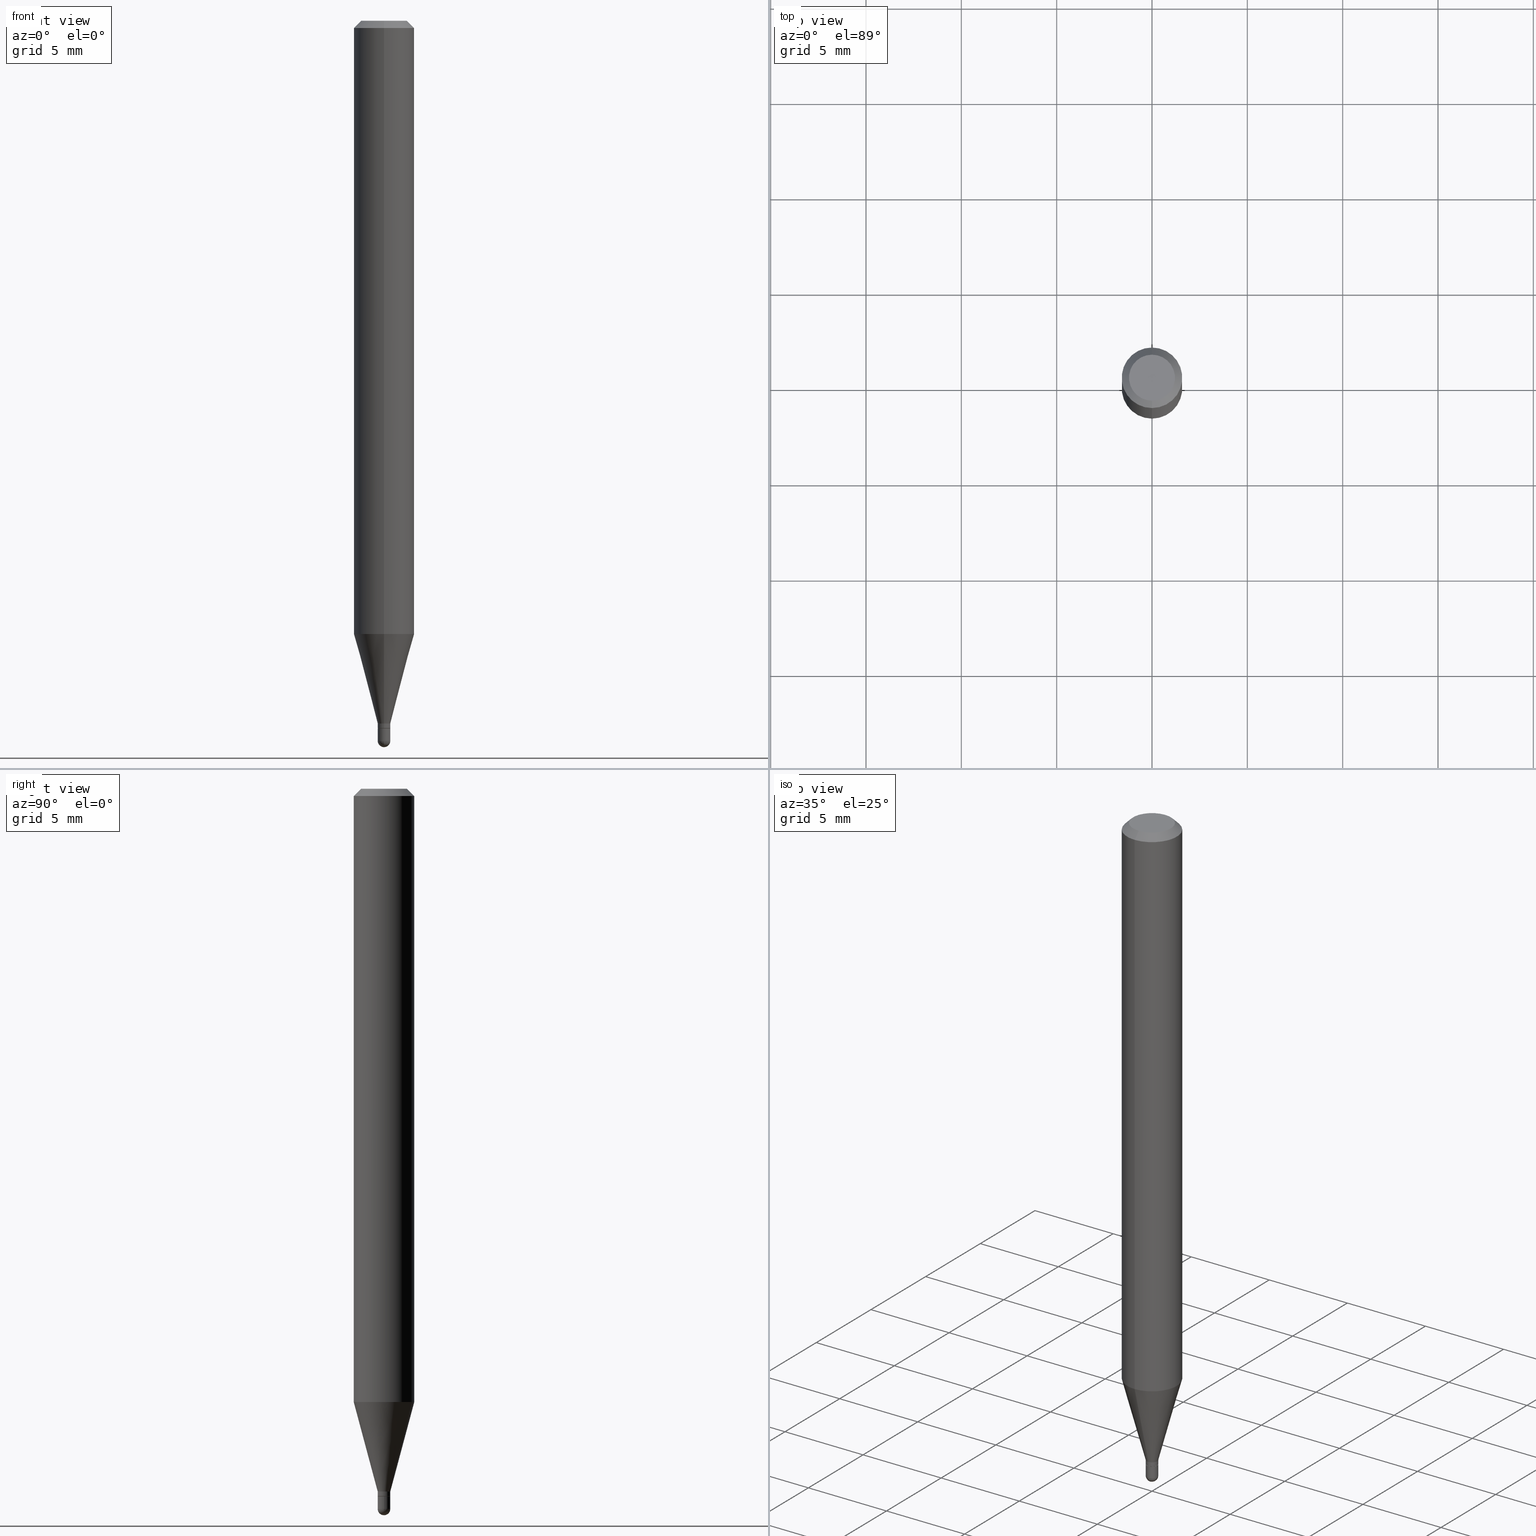
[diagram: canonical four-view strip — front | top / right | iso, engineering-drawing reading convention]
A machine part, canonical four-view strip (front | top / right | iso — engineering-drawing reading convention). The complete STEP part file that produces these views, byte-faithful:
ISO-10303-21;
HEADER;
FILE_DESCRIPTION (( 'STEP AP203' ),
    '1' );
FILE_NAME ('00761.STEP',
    '2024-03-07T18:14:23',
    ( '' ),
    ( '' ),
    'SwSTEP 2.0',
    'SolidWorks 2023',
    '' );
FILE_SCHEMA (( 'CONFIG_CONTROL_DESIGN' ));
ENDSEC;

DATA;
#1 = AXIS2_PLACEMENT_3D ( 'NONE', #6, #315, #164 ) ;
#2 = LOCAL_TIME ( 13, 14, 23.00000000000000000, #86 ) ;
#3 = DIRECTION ( 'NONE',  ( -6.982962677686266711E-15, -1.000000000000000000, 3.491464649798792832E-15 ) ) ;
#4 = FACE_OUTER_BOUND ( 'NONE', #352, .T. ) ;
#5 = ORIENTED_EDGE ( 'NONE', *, *, #511, .F. ) ;
#6 = CARTESIAN_POINT ( 'NONE',  ( 3.096622609945466894E-29, -4.421114195297001203E-15, -1.266263485025340918 ) ) ;
#7 = CARTESIAN_POINT ( 'NONE',  ( 0.000000000000000000, 0.000000000000000000, 0.000000000000000000 ) ) ;
#8 = DATE_AND_TIME ( #485, #93 ) ;
#9 = LOCAL_TIME ( 13, 14, 23.00000000000000000, #142 ) ;
#10 = DIRECTION ( 'NONE',  ( -6.982962677686265133E-15, -1.000000000000000000, 0.000000000000000000 ) ) ;
#11 = EDGE_CURVE ( 'NONE', #55, #254, #79, .T. ) ;
#12 = DIRECTION ( 'NONE',  ( -6.982962677686266711E-15, -1.000000000000000000, 0.000000000000000000 ) ) ;
#13 = ORIENTED_EDGE ( 'NONE', *, *, #267, .T. ) ;
#14 = FACE_OUTER_BOUND ( 'NONE', #76, .T. ) ;
#15 = ADVANCED_FACE ( 'NONE', ( #112 ), #421, .T. ) ;
#16 = DIRECTION ( 'NONE',  ( 4.937700262164548042E-15, 0.7071067811865451302, -0.7071067811865499042 ) ) ;
#17 = ORIENTED_EDGE ( 'NONE', *, *, #369, .F. ) ;
#18 = CC_DESIGN_PERSON_AND_ORGANIZATION_ASSIGNMENT ( #320, #438, ( #413 ) ) ;
#19 = UNCERTAINTY_MEASURE_WITH_UNIT (LENGTH_MEASURE( 1.000000000000000082E-05 ), #417, 'distance_accuracy_value', 'NONE');
#20 = LINE ( 'NONE', #301, #418 ) ;
#21 = CARTESIAN_POINT ( 'NONE',  ( 0.000000000000000000, 0.000000000000000000, 0.000000000000000000 ) ) ;
#22 = ORIENTED_EDGE ( 'NONE', *, *, #363, .F. ) ;
#23 = AXIS2_PLACEMENT_3D ( 'NONE', #193, #307, #105 ) ;
#24 = VERTEX_POINT ( 'NONE', #423 ) ;
#25 = CYLINDRICAL_SURFACE ( 'NONE', #225, 0.01299999999999992308 ) ;
#26 = DIMENSIONAL_EXPONENTS ( 1.000000000000000000, 0.000000000000000000, 0.000000000000000000, 0.000000000000000000, 0.000000000000000000, 0.000000000000000000, 0.000000000000000000 ) ;
#27 = DIRECTION ( 'NONE',  ( -2.445468806185136597E-29, 3.491481338843145583E-15, 1.000000000000000000 ) ) ;
#28 = DIRECTION ( 'NONE',  ( -2.445480460082520354E-29, 3.491464649798792832E-15, 1.000000000000000000 ) ) ;
#29 = DIRECTION ( 'NONE',  ( 1.839019923739598738E-15, 0.2588190451025247363, 0.9659258262890673130 ) ) ;
#30 = EDGE_CURVE ( 'NONE', #254, #24, #189, .T. ) ;
#31 = CIRCLE ( 'NONE', #202, 0.01299999999999992134 ) ;
#32 = VECTOR ( 'NONE', #382, 39.37007874015748143 ) ;
#33 = EDGE_LOOP ( 'NONE', ( #350, #17, #347, #439 ) ) ;
#34 = CARTESIAN_POINT ( 'NONE',  ( 3.635300398621365410E-29, -5.193424791698649271E-15, -1.487000000000000099 ) ) ;
#35 = SPHERICAL_SURFACE ( 'NONE', #392, 0.01300000000000005318 ) ;
#36 = ORIENTED_EDGE ( 'NONE', *, *, #89, .F. ) ;
#37 = EDGE_CURVE ( 'NONE', #205, #66, #461, .T. ) ;
#38 = LINE ( 'NONE', #165, #217 ) ;
#39 = CIRCLE ( 'NONE', #448, 0.01249999999999999896 ) ;
#40 = EDGE_CURVE ( 'NONE', #510, #151, #149, .T. ) ;
#41 = ORIENTED_EDGE ( 'NONE', *, *, #267, .F. ) ;
#42 = DIRECTION ( 'NONE',  ( -2.445468806185136877E-29, 3.491481338843145188E-15, 1.000000000000000000 ) ) ;
#43 = ORIENTED_EDGE ( 'NONE', *, *, #363, .T. ) ;
#44 = CARTESIAN_POINT ( 'NONE',  ( 3.668220690123783877E-31, -5.237196974698191565E-17, -0.01500000000000000812 ) ) ;
#45 = PERSON_AND_ORGANIZATION ( #474, #339 ) ;
#46 = DIRECTION ( 'NONE',  ( -2.445480460082520915E-29, 3.491464649798792437E-15, 1.000000000000000000 ) ) ;
#47 = CONICAL_SURFACE ( 'NONE', #167, 0.01299999999999992134, 0.2617993877991500740 ) ;
#48 = COORDINATED_UNIVERSAL_TIME_OFFSET ( 5, 0, .BEHIND. ) ;
#49 = EDGE_LOOP ( 'NONE', ( #478, #276, #214, #36 ) ) ;
#50 = CARTESIAN_POINT ( 'NONE',  ( 3.548392147579738179E-29, -5.066115206858047918E-15, -1.451000000000000068 ) ) ;
#51 = ADVANCED_FACE ( 'NONE', ( #152 ), #154, .F. ) ;
#52 = CARTESIAN_POINT ( 'NONE',  ( 9.077851480995717256E-17, 0.01299999999999489758, -1.461000000000000076 ) ) ;
#53 = EDGE_CURVE ( 'NONE', #272, #258, #179, .T. ) ;
#54 = CARTESIAN_POINT ( 'NONE',  ( 9.059419880944819267E-17, 0.01249999999999489887, -1.461000000000000076 ) ) ;
#55 = VERTEX_POINT ( 'NONE', #224 ) ;
#56 = AXIS2_PLACEMENT_3D ( 'NONE', #116, #75, #397 ) ;
#57 = PRODUCT_DEFINITION_FORMATION_WITH_SPECIFIED_SOURCE ( 'ANY', '', #71, .NOT_KNOWN. ) ;
#58 = CARTESIAN_POINT ( 'NONE',  ( -8.728703347104258862E-17, -0.01250000000000509905, -1.461000000000000076 ) ) ;
#59 = DIRECTION ( 'NONE',  ( -2.445480460082520915E-29, 3.491464649798792437E-15, 1.000000000000000000 ) ) ;
#60 = DATE_AND_TIME ( #414, #9 ) ;
#61 = EDGE_CURVE ( 'NONE', #510, #258, #336, .T. ) ;
#62 = CARTESIAN_POINT ( 'NONE',  ( 0.000000000000000000, 0.000000000000000000, 0.000000000000000000 ) ) ;
#63 = DIRECTION ( 'NONE',  ( 2.445480460082520915E-29, -3.491464649798792437E-15, -1.000000000000000000 ) ) ;
#64 = CC_DESIGN_APPROVAL ( #291, ( #125 ) ) ;
#65 = EDGE_LOOP ( 'NONE', ( #324, #241, #221, #70 ) ) ;
#66 = VERTEX_POINT ( 'NONE', #386 ) ;
#67 = ORIENTED_EDGE ( 'NONE', *, *, #124, .F. ) ;
#68 = EDGE_CURVE ( 'NONE', #317, #168, #455, .T. ) ;
#69 = ORIENTED_EDGE ( 'NONE', *, *, #253, .T. ) ;
#70 = ORIENTED_EDGE ( 'NONE', *, *, #143, .F. ) ;
#71 = PRODUCT ( '00761', '00761', '', ( #108 ) ) ;
#72 = ORIENTED_EDGE ( 'NONE', *, *, #408, .T. ) ;
#73 = ADVANCED_FACE ( 'NONE', ( #313 ), #103, .T. ) ;
#74 = DIRECTION ( 'NONE',  ( -2.445468806185136597E-29, 3.491481338843145583E-15, 1.000000000000000000 ) ) ;
#75 = DIRECTION ( 'NONE',  ( -2.445480460082520915E-29, 3.491464649798792437E-15, 1.000000000000000000 ) ) ;
#76 = EDGE_LOOP ( 'NONE', ( #260, #148 ) ) ;
#77 = FACE_OUTER_BOUND ( 'NONE', #33, .T. ) ;
#78 = ORIENTED_EDGE ( 'NONE', *, *, #182, .F. ) ;
#79 = CIRCLE ( 'NONE', #174, 0.01299999999999992134 ) ;
#80 = DIRECTION ( 'NONE',  ( 1.000000000000000000, -6.982962677686258822E-15, 0.000000000000000000 ) ) ;
#81 = VECTOR ( 'NONE', #177, 39.37007874015748143 ) ;
#82 = ORIENTED_EDGE ( 'NONE', *, *, #422, .F. ) ;
#83 = ORIENTED_EDGE ( 'NONE', *, *, #511, .T. ) ;
#84 = DIRECTION ( 'NONE',  ( -6.982962677686266711E-15, -1.000000000000000000, 3.491464649798792832E-15 ) ) ;
#85 = ORIENTED_EDGE ( 'NONE', *, *, #220, .F. ) ;
#86 = COORDINATED_UNIVERSAL_TIME_OFFSET ( 5, 0, .BEHIND. ) ;
#87 = DIRECTION ( 'NONE',  ( -2.445468806185136597E-29, 3.491481338843145583E-15, 1.000000000000000000 ) ) ;
#88 = APPROVAL_STATUS ( 'not_yet_approved' ) ;
#89 = EDGE_CURVE ( 'NONE', #254, #55, #31, .T. ) ;
#90 = DIRECTION ( 'NONE',  ( -2.445480460082520915E-29, 3.491464649798792437E-15, 1.000000000000000000 ) ) ;
#91 = AXIS2_PLACEMENT_3D ( 'NONE', #466, #27, #265 ) ;
#92 = CIRCLE ( 'NONE', #23, 0.06250000000000000000 ) ;
#93 = LOCAL_TIME ( 13, 14, 23.00000000000000000, #48 ) ;
#94 = CARTESIAN_POINT ( 'NONE',  ( 0.01299999999999999767, -5.237222008264718177E-15, -1.487000000000000099 ) ) ;
#95 = EDGE_CURVE ( 'NONE', #416, #120, #493, .T. ) ;
#96 = APPROVAL_ROLE ( '' ) ;
#97 = CARTESIAN_POINT ( 'NONE',  ( 0.01299999999999999767, -9.077851480992146428E-17, 6.339029808534715270E-31 ) ) ;
#98 = CARTESIAN_POINT ( 'NONE',  ( 3.668220690123783877E-31, -5.237196974698191565E-17, -0.01500000000000000812 ) ) ;
#99 = CIRCLE ( 'NONE', #505, 0.01299999999999999767 ) ;
#100 = CARTESIAN_POINT ( 'NONE',  ( -4.364351673553912750E-16, -0.06250000000000005551, -0.01499999999999979128 ) ) ;
#101 = EDGE_LOOP ( 'NONE', ( #499, #277, #235, #5 ) ) ;
#102 = ORIENTED_EDGE ( 'NONE', *, *, #166, .T. ) ;
#103 = CYLINDRICAL_SURFACE ( 'NONE', #187, 0.01299999999999999767 ) ;
#104 = ORIENTED_EDGE ( 'NONE', *, *, #30, .T. ) ;
#105 = DIRECTION ( 'NONE',  ( -6.982962677686265922E-15, -1.000000000000000000, 3.483106191921935554E-15 ) ) ;
#106 = EDGE_LOOP ( 'NONE', ( #268, #248, #138, #329 ) ) ;
#107 = AXIS2_PLACEMENT_3D ( 'NONE', #44, #242, #431 ) ;
#108 = MECHANICAL_CONTEXT ( 'NONE', #424, 'mechanical' ) ;
#109 = ORIENTED_EDGE ( 'NONE', *, *, #346, .T. ) ;
#110 = ADVANCED_FACE ( 'NONE', ( #482 ), #472, .T. ) ;
#111 = APPROVAL_STATUS ( 'not_yet_approved' ) ;
#112 = FACE_OUTER_BOUND ( 'NONE', #101, .T. ) ;
#113 = DIRECTION ( 'NONE',  ( 1.000000000000000000, -6.982962677686258822E-15, 0.000000000000000000 ) ) ;
#114 = CIRCLE ( 'NONE', #402, 0.01299999999999999767 ) ;
#115 = CARTESIAN_POINT ( 'NONE',  ( 3.548392147579738179E-29, -5.066115206858047918E-15, -1.451000000000000068 ) ) ;
#116 = CARTESIAN_POINT ( 'NONE',  ( 0.000000000000000000, 0.000000000000000000, 0.000000000000000000 ) ) ;
#117 = ORIENTED_EDGE ( 'NONE', *, *, #53, .T. ) ;
#118 = CARTESIAN_POINT ( 'NONE',  ( 4.440892098500936776E-16, 0.06249999999999993755, -0.01500000000000022669 ) ) ;
#119 = DIRECTION ( 'NONE',  ( -2.445480460082520915E-29, 3.491464649798792437E-15, 1.000000000000000000 ) ) ;
#120 = VERTEX_POINT ( 'NONE', #479 ) ;
#121 = AXIS2_PLACEMENT_3D ( 'NONE', #216, #311, #219 ) ;
#122 = CARTESIAN_POINT ( 'NONE',  ( 4.440892098500625669E-16, 0.06250000000000000000, -2.182165406124245273E-16 ) ) ;
#123 = VECTOR ( 'NONE', #42, 39.37007874015748143 ) ;
#124 = EDGE_CURVE ( 'NONE', #66, #55, #230, .T. ) ;
#125 = SECURITY_CLASSIFICATION ( '', '', #287 ) ;
#126 = APPROVAL_DATE_TIME ( #8, #471 ) ;
#127 = CARTESIAN_POINT ( 'NONE',  ( 3.636412114797298223E-29, -5.191832750859757506E-15, -1.487000000000000099 ) ) ;
#128 = DIRECTION ( 'NONE',  ( -4.937700262164674260E-15, -0.7071067811865632269, 0.7071067811865319186 ) ) ;
#129 = PERSON_AND_ORGANIZATION_ROLE ( 'creator' ) ;
#130 = EDGE_CURVE ( 'NONE', #168, #317, #114, .T. ) ;
#131 = DIRECTION ( 'NONE',  ( -2.445480460082520915E-29, 3.491464649798792437E-15, 1.000000000000000000 ) ) ;
#132 = MANIFOLD_SOLID_BREP ( 'Body-Move/Copy2[1]', #261 ) ;
#133 = CIRCLE ( 'NONE', #270, 0.04749999999999999362 ) ;
#134 = VERTEX_POINT ( 'NONE', #429 ) ;
#135 = EDGE_CURVE ( 'NONE', #494, #273, #38, .T. ) ;
#136 = DIRECTION ( 'NONE',  ( 2.438088387897960049E-29, -3.491481338843145188E-15, -1.000000000000000000 ) ) ;
#137 = DIRECTION ( 'NONE',  ( -1.000000000000000000, 6.982962677686265922E-15, -4.876176775795935793E-29 ) ) ;
#138 = ORIENTED_EDGE ( 'NONE', *, *, #314, .T. ) ;
#139 = CARTESIAN_POINT ( 'NONE',  ( 3.548392147579738179E-29, -5.066115206858047918E-15, -1.451000000000000068 ) ) ;
#140 = VECTOR ( 'NONE', #128, 39.37007874015748143 ) ;
#141 = MANIFOLD_SOLID_BREP ( 'Body-Move/Copy2[2]', #426 ) ;
#142 = COORDINATED_UNIVERSAL_TIME_OFFSET ( 5, 0, .BEHIND. ) ;
#143 = EDGE_CURVE ( 'NONE', #151, #272, #469, .T. ) ;
#144 = CARTESIAN_POINT ( 'NONE',  ( 0.000000000000000000, 0.000000000000000000, 0.000000000000000000 ) ) ;
#145 = DIRECTION ( 'NONE',  ( -2.445480460082520915E-29, 3.491464649798792437E-15, 1.000000000000000000 ) ) ;
#146 = FACE_OUTER_BOUND ( 'NONE', #49, .T. ) ;
#147 = DIRECTION ( 'NONE',  ( -2.445468806185136597E-29, 3.491481338843145583E-15, 1.000000000000000000 ) ) ;
#148 = ORIENTED_EDGE ( 'NONE', *, *, #130, .T. ) ;
#149 = CIRCLE ( 'NONE', #280, 0.01300000000000005318 ) ;
#150 = PERSON_AND_ORGANIZATION ( #474, #339 ) ;
#151 = VERTEX_POINT ( 'NONE', #442 ) ;
#152 = FACE_OUTER_BOUND ( 'NONE', #161, .T. ) ;
#153 = ORIENTED_EDGE ( 'NONE', *, *, #396, .F. ) ;
#154 = PLANE ( 'NONE',  #121 ) ;
#155 = ADVANCED_FACE ( 'NONE', ( #400 ), #357, .T. ) ;
#156 = AXIS2_PLACEMENT_3D ( 'NONE', #322, #195, #364 ) ;
#157 = CIRCLE ( 'NONE', #1, 0.06250000000000000000 ) ;
#158 = LINE ( 'NONE', #361, #123 ) ;
#159 = APPROVAL_PERSON_ORGANIZATION ( #401, #471, #326 ) ;
#160 = CARTESIAN_POINT ( 'NONE',  ( 3.572846952180563057E-29, -5.101029853356035180E-15, -1.461000000000000076 ) ) ;
#161 = EDGE_LOOP ( 'NONE', ( #238, #433 ) ) ;
#162 = APPROVAL_DATE_TIME ( #406, #291 ) ;
#163 = EDGE_LOOP ( 'NONE', ( #282, #104, #399, #200 ) ) ;
#164 = DIRECTION ( 'NONE',  ( -6.982962677686265922E-15, -1.000000000000000000, 4.370956789862821150E-15 ) ) ;
#165 = CARTESIAN_POINT ( 'NONE',  ( -4.287811248607203282E-16, -0.06250000000000005551, -0.01499999999999979128 ) ) ;
#166 = EDGE_CURVE ( 'NONE', #24, #492, #286, .T. ) ;
#167 = AXIS2_PLACEMENT_3D ( 'NONE', #139, #90, #332 ) ;
#168 = VERTEX_POINT ( 'NONE', #390 ) ;
#169 = DIRECTION ( 'NONE',  ( -6.982962677686265133E-15, -1.000000000000000000, 0.000000000000000000 ) ) ;
#170 = ADVANCED_FACE ( 'NONE', ( #4 ), #403, .T. ) ;
#171 = LINE ( 'NONE', #58, #140 ) ;
#172 = EDGE_LOOP ( 'NONE', ( #13, #285, #508, #388 ) ) ;
#173 = DIRECTION ( 'NONE',  ( 1.000000000000000000, -6.982962677686267499E-15, 4.876176775795935793E-29 ) ) ;
#174 = AXIS2_PLACEMENT_3D ( 'NONE', #308, #145, #415 ) ;
#175 = AXIS2_PLACEMENT_3D ( 'NONE', #229, #28, #310 ) ;
#176 = DIRECTION ( 'NONE',  ( -2.445480460082520915E-29, 3.491464649798792437E-15, 1.000000000000000000 ) ) ;
#177 = DIRECTION ( 'NONE',  ( 5.024295867788190974E-15, 0.7071067811865681119, 0.7071067811865270336 ) ) ;
#178 = ADVANCED_FACE ( 'NONE', ( #203 ), #480, .T. ) ;
#179 = CIRCLE ( 'NONE', #91, 0.01299999999999999767 ) ;
#180 = DIRECTION ( 'NONE',  ( -2.445468806185136597E-29, 3.491481338843145583E-15, 1.000000000000000000 ) ) ;
#181 = ORIENTED_EDGE ( 'NONE', *, *, #500, .F. ) ;
#182 = EDGE_CURVE ( 'NONE', #494, #134, #133, .T. ) ;
#183 = CARTESIAN_POINT ( 'NONE',  ( 3.635300398621365410E-29, -5.193424791698649271E-15, -1.487000000000000099 ) ) ;
#184 = PRODUCT_RELATED_PRODUCT_CATEGORY ( 'detail', '', ( #71 ) ) ;
#185 = PERSON_AND_ORGANIZATION_ROLE ( 'design_owner' ) ;
#186 = DIRECTION ( 'NONE',  ( -1.000000000000000000, 7.105427357601001070E-15, -4.926315508542082329E-29 ) ) ;
#187 = AXIS2_PLACEMENT_3D ( 'NONE', #62, #378, #341 ) ;
#188 = AXIS2_PLACEMENT_3D ( 'NONE', #50, #207, #12 ) ;
#189 = LINE ( 'NONE', #385, #504 ) ;
#190 = CARTESIAN_POINT ( 'NONE',  ( 3.635300398621365410E-29, -5.193424791698649271E-15, -1.487000000000000099 ) ) ;
#191 = ADVANCED_FACE ( 'NONE', ( #468 ), #35, .T. ) ;
#192 = DIRECTION ( 'NONE',  ( -1.000000000000000000, 6.982962677686265133E-15, -4.883557194083111780E-29 ) ) ;
#193 = CARTESIAN_POINT ( 'NONE',  ( 3.668220690123783877E-31, -5.237196974698191565E-17, -0.01500000000000000812 ) ) ;
#194 = CONICAL_SURFACE ( 'NONE', #188, 0.01299999999999992134, 0.2617993877991500740 ) ;
#195 = DIRECTION ( 'NONE',  ( -2.445480460082520915E-29, 3.491464649798792437E-15, 1.000000000000000000 ) ) ;
#196 = EDGE_LOOP ( 'NONE', ( #85, #432, #436, #444, #231 ) ) ;
#197 = DIRECTION ( 'NONE',  ( -2.445468806185136597E-29, 3.491481338843145583E-15, 1.000000000000000000 ) ) ;
#198 = APPROVAL_DATE_TIME ( #60, #325 ) ;
#199 = CARTESIAN_POINT ( 'NONE',  ( 2.682298827494708454E-16, 0.01299999999999485421, -1.451000000000000068 ) ) ;
#200 = ORIENTED_EDGE ( 'NONE', *, *, #314, .F. ) ;
#201 = SHAPE_DEFINITION_REPRESENTATION ( #351, #359 ) ;
#202 = AXIS2_PLACEMENT_3D ( 'NONE', #115, #46, #435 ) ;
#203 = FACE_OUTER_BOUND ( 'NONE', #464, .T. ) ;
#204 = AXIS2_PLACEMENT_3D ( 'NONE', #393, #63, #303 ) ;
#205 = VERTEX_POINT ( 'NONE', #394 ) ;
#206 = PERSON_AND_ORGANIZATION_ROLE ( 'classification_officer' ) ;
#207 = DIRECTION ( 'NONE',  ( -2.445480460082520915E-29, 3.491464649798792437E-15, 1.000000000000000000 ) ) ;
#208 = DIRECTION ( 'NONE',  ( -2.445480460082520915E-29, 3.491464649798792437E-15, 1.000000000000000000 ) ) ;
#209 = LINE ( 'NONE', #373, #463 ) ;
#210 = AXIS2_PLACEMENT_3D ( 'NONE', #327, #131, #293 ) ;
#211 = ADVANCED_FACE ( 'NONE', ( #237 ), #228, .T. ) ;
#212 = CARTESIAN_POINT ( 'NONE',  ( 3.636412114797298223E-29, -5.191832750859757506E-15, -1.487000000000000099 ) ) ;
#213 = FACE_OUTER_BOUND ( 'NONE', #360, .T. ) ;
#214 = ORIENTED_EDGE ( 'NONE', *, *, #124, .T. ) ;
#215 = CARTESIAN_POINT ( 'NONE',  ( 9.237055564881246526E-17, 0.01299999999999992308, -4.538904044738403806E-17 ) ) ;
#216 = CARTESIAN_POINT ( 'NONE',  ( 3.316907271900976096E-16, 0.04749999999999999362, -1.702751270261615935E-16 ) ) ;
#217 = VECTOR ( 'NONE', #234, 39.37007874015748143 ) ;
#218 = CIRCLE ( 'NONE', #309, 0.06250000000000000000 ) ;
#219 = DIRECTION ( 'NONE',  ( 6.982962677686265922E-15, 1.000000000000000000, -3.491464649798792832E-15 ) ) ;
#220 = EDGE_CURVE ( 'NONE', #425, #168, #158, .T. ) ;
#221 = ORIENTED_EDGE ( 'NONE', *, *, #53, .F. ) ;
#222 =( NAMED_UNIT ( * ) SI_UNIT ( $, .STERADIAN. ) SOLID_ANGLE_UNIT ( ) );
#223 = DIRECTION ( 'NONE',  ( 6.982962677686265133E-15, 1.000000000000000000, 0.000000000000000000 ) ) ;
#224 = CARTESIAN_POINT ( 'NONE',  ( -9.077851480988543552E-17, -0.01300000000000498847, -1.451000000000000068 ) ) ;
#225 = AXIS2_PLACEMENT_3D ( 'NONE', #144, #305, #3 ) ;
#226 = DIRECTION ( 'NONE',  ( -1.000000000000000000, 6.982962677686265133E-15, -4.883557194083111780E-29 ) ) ;
#227 = CC_DESIGN_DATE_AND_TIME_ASSIGNMENT ( #452, #246, ( #413 ) ) ;
#228 = CYLINDRICAL_SURFACE ( 'NONE', #56, 0.06250000000000000000 ) ;
#229 = CARTESIAN_POINT ( 'NONE',  ( 3.572846952180563057E-29, -5.101029853356035180E-15, -1.461000000000000076 ) ) ;
#230 = LINE ( 'NONE', #366, #447 ) ;
#231 = ORIENTED_EDGE ( 'NONE', *, *, #130, .F. ) ;
#232 =( NAMED_UNIT ( * ) PLANE_ANGLE_UNIT ( ) SI_UNIT ( $, .RADIAN. ) );
#233 = AXIS2_PLACEMENT_3D ( 'NONE', #275, #119, #10 ) ;
#234 = DIRECTION ( 'NONE',  ( -4.851104656540964275E-15, -0.7071067811865500152, -0.7071067811865450192 ) ) ;
#235 = ORIENTED_EDGE ( 'NONE', *, *, #428, .F. ) ;
#236 = CC_DESIGN_PERSON_AND_ORGANIZATION_ASSIGNMENT ( #45, #129, ( #57 ) ) ;
#237 = FACE_OUTER_BOUND ( 'NONE', #368, .T. ) ;
#238 = ORIENTED_EDGE ( 'NONE', *, *, #369, .T. ) ;
#239 = ORIENTED_EDGE ( 'NONE', *, *, #37, .F. ) ;
#240 = APPROVAL_STATUS ( 'not_yet_approved' ) ;
#241 = ORIENTED_EDGE ( 'NONE', *, *, #61, .T. ) ;
#242 = DIRECTION ( 'NONE',  ( 2.445480460082520915E-29, -3.491464649798792437E-15, -1.000000000000000000 ) ) ;
#243 = AXIS2_PLACEMENT_3D ( 'NONE', #127, #87, #358 ) ;
#244 = DIRECTION ( 'NONE',  ( -6.982962677686265922E-15, -1.000000000000000000, 4.370956789862821150E-15 ) ) ;
#245 = VECTOR ( 'NONE', #250, 39.37007874015748143 ) ;
#246 = DATE_TIME_ROLE ( 'creation_date' ) ;
#247 = CYLINDRICAL_SURFACE ( 'NONE', #365, 0.01299999999999999767 ) ;
#248 = ORIENTED_EDGE ( 'NONE', *, *, #89, .T. ) ;
#249 = COORDINATED_UNIVERSAL_TIME_OFFSET ( 5, 0, .BEHIND. ) ;
#250 = DIRECTION ( 'NONE',  ( -2.445468806185136877E-29, 3.491481338843145188E-15, 1.000000000000000000 ) ) ;
#251 = DIRECTION ( 'NONE',  ( -6.982962677686265922E-15, -1.000000000000000000, 3.483106191921935554E-15 ) ) ;
#252 = AXIS2_PLACEMENT_3D ( 'NONE', #183, #501, #345 ) ;
#253 = EDGE_CURVE ( 'NONE', #299, #24, #157, .T. ) ;
#254 = VERTEX_POINT ( 'NONE', #199 ) ;
#255 = LINE ( 'NONE', #454, #470 ) ;
#256 = EDGE_CURVE ( 'NONE', #273, #492, #349, .T. ) ;
#257 = CARTESIAN_POINT ( 'NONE',  ( 0.000000000000000000, 0.000000000000000000, 0.000000000000000000 ) ) ;
#258 = VERTEX_POINT ( 'NONE', #334 ) ;
#259 = CARTESIAN_POINT ( 'NONE',  ( 3.636412114797298223E-29, -5.191832750859757506E-15, -1.487000000000000099 ) ) ;
#260 = ORIENTED_EDGE ( 'NONE', *, *, #68, .T. ) ;
#261 = CLOSED_SHELL ( 'NONE', ( #328, #15, #353, #191, #73 ) ) ;
#262 = CONICAL_SURFACE ( 'NONE', #204, 0.06250000000000000000, 0.7853981633974483900 ) ;
#263 = DIRECTION ( 'NONE',  ( 0.000000000000000000, 0.000000000000000000, 1.000000000000000000 ) ) ;
#264 = ORIENTED_EDGE ( 'NONE', *, *, #95, .T. ) ;
#265 = DIRECTION ( 'NONE',  ( 1.000000000000000000, -6.982962677686258822E-15, 0.000000000000000000 ) ) ;
#266 = EDGE_LOOP ( 'NONE', ( #83, #297, #342, #153, #117 ) ) ;
#267 = EDGE_CURVE ( 'NONE', #120, #416, #39, .T. ) ;
#268 = ORIENTED_EDGE ( 'NONE', *, *, #30, .F. ) ;
#269 = ORIENTED_EDGE ( 'NONE', *, *, #304, .T. ) ;
#270 = AXIS2_PLACEMENT_3D ( 'NONE', #316, #476, #284 ) ;
#271 = DIRECTION ( 'NONE',  ( -2.445480460082520915E-29, 3.491464649798792832E-15, 1.000000000000000000 ) ) ;
#272 = VERTEX_POINT ( 'NONE', #94 ) ;
#273 = VERTEX_POINT ( 'NONE', #100 ) ;
#274 = ADVANCED_FACE ( 'NONE', ( #213 ), #376, .T. ) ;
#275 = CARTESIAN_POINT ( 'NONE',  ( 3.572846952180563057E-29, -5.101029853356035180E-15, -1.461000000000000076 ) ) ;
#276 = ORIENTED_EDGE ( 'NONE', *, *, #37, .T. ) ;
#277 = ORIENTED_EDGE ( 'NONE', *, *, #40, .T. ) ;
#278 = CARTESIAN_POINT ( 'NONE',  ( 3.635300398621365410E-29, -5.193424791698649271E-15, -1.487000000000000099 ) ) ;
#279 = PERSON_AND_ORGANIZATION ( #474, #339 ) ;
#280 = AXIS2_PLACEMENT_3D ( 'NONE', #190, #186, #419 ) ;
#281 = AXIS2_PLACEMENT_3D ( 'NONE', #257, #263, #335 ) ;
#282 = ORIENTED_EDGE ( 'NONE', *, *, #11, .T. ) ;
#283 = CC_DESIGN_APPROVAL ( #471, ( #57 ) ) ;
#284 = DIRECTION ( 'NONE',  ( -6.982962677686266711E-15, -1.000000000000000000, 3.491464649798792437E-15 ) ) ;
#285 = ORIENTED_EDGE ( 'NONE', *, *, #338, .T. ) ;
#286 = LINE ( 'NONE', #122, #330 ) ;
#287 = SECURITY_CLASSIFICATION_LEVEL ( 'unclassified' ) ;
#288 = ADVANCED_FACE ( 'NONE', ( #490 ), #47, .T. ) ;
#289 = PLANE ( 'NONE',  #337 ) ;
#290 = PERSON_AND_ORGANIZATION_ROLE ( 'design_supplier' ) ;
#291 = APPROVAL ( #88, 'UNSPECIFIED' ) ;
#292 = AXIS2_PLACEMENT_3D ( 'NONE', #7, #318, #84 ) ;
#293 = DIRECTION ( 'NONE',  ( -6.982962677686266711E-15, -1.000000000000000000, 0.000000000000000000 ) ) ;
#294 = AXIS2_PLACEMENT_3D ( 'NONE', #98, #176, #251 ) ;
#295 = APPROVAL_PERSON_ORGANIZATION ( #150, #325, #430 ) ;
#296 = DATE_AND_TIME ( #395, #387 ) ;
#297 = ORIENTED_EDGE ( 'NONE', *, *, #220, .T. ) ;
#298 = DIRECTION ( 'NONE',  ( -2.445480460082520915E-29, 3.491464649798792832E-15, 1.000000000000000000 ) ) ;
#299 = VERTEX_POINT ( 'NONE', #370 ) ;
#300 = CARTESIAN_POINT ( 'NONE',  ( 3.572846952180563057E-29, -5.101029853356035180E-15, -1.461000000000000076 ) ) ;
#301 = CARTESIAN_POINT ( 'NONE',  ( -9.077851480988543552E-17, -0.01300000000000498847, -1.451000000000000068 ) ) ;
#302 = AXIS2_PLACEMENT_3D ( 'NONE', #212, #180, #340 ) ;
#303 = DIRECTION ( 'NONE',  ( 6.982962677686265922E-15, 1.000000000000000000, -3.483106191921935554E-15 ) ) ;
#304 = EDGE_CURVE ( 'NONE', #24, #299, #218, .T. ) ;
#305 = DIRECTION ( 'NONE',  ( -2.445480460082520915E-29, 3.491464649798792437E-15, 1.000000000000000000 ) ) ;
#306 = ORIENTED_EDGE ( 'NONE', *, *, #256, .T. ) ;
#307 = DIRECTION ( 'NONE',  ( -2.445480460082520915E-29, 3.491464649798792437E-15, 1.000000000000000000 ) ) ;
#308 = CARTESIAN_POINT ( 'NONE',  ( 3.548392147579738179E-29, -5.066115206858047918E-15, -1.451000000000000068 ) ) ;
#309 = AXIS2_PLACEMENT_3D ( 'NONE', #407, #375, #244 ) ;
#310 = DIRECTION ( 'NONE',  ( -6.982962677686265922E-15, -1.000000000000000000, 3.491464649798792832E-15 ) ) ;
#311 = DIRECTION ( 'NONE',  ( 2.445480460082520354E-29, -3.491464649798792832E-15, -1.000000000000000000 ) ) ;
#312 = CARTESIAN_POINT ( 'NONE',  ( 3.572829925836484317E-29, -5.101054236049835376E-15, -1.461000000000000076 ) ) ;
#313 = FACE_OUTER_BOUND ( 'NONE', #196, .T. ) ;
#314 = EDGE_CURVE ( 'NONE', #55, #299, #20, .T. ) ;
#315 = DIRECTION ( 'NONE',  ( -2.445480460082520915E-29, 3.491464649798792437E-15, 1.000000000000000000 ) ) ;
#316 = CARTESIAN_POINT ( 'NONE',  ( 2.166967703667277052E-46, -3.093826042819683228E-32, -8.861112321437868049E-18 ) ) ;
#317 = VERTEX_POINT ( 'NONE', #489 ) ;
#318 = DIRECTION ( 'NONE',  ( -2.445480460082520915E-29, 3.491464649798792437E-15, 1.000000000000000000 ) ) ;
#319 = ORIENTED_EDGE ( 'NONE', *, *, #135, .T. ) ;
#320 = PERSON_AND_ORGANIZATION ( #474, #339 ) ;
#321 = CIRCLE ( 'NONE', #372, 0.04749999999999999362 ) ;
#322 = CARTESIAN_POINT ( 'NONE',  ( 3.572846952180563057E-29, -5.101029853356035180E-15, -1.461000000000000076 ) ) ;
#323 = FACE_OUTER_BOUND ( 'NONE', #266, .T. ) ;
#324 = ORIENTED_EDGE ( 'NONE', *, *, #40, .F. ) ;
#325 = APPROVAL ( #111, 'UNSPECIFIED' ) ;
#326 = APPROVAL_ROLE ( '' ) ;
#327 = CARTESIAN_POINT ( 'NONE',  ( 3.571624211950522037E-29, -5.099284121031137789E-15, -1.460500000000000131 ) ) ;
#328 = ADVANCED_FACE ( 'NONE', ( #323 ), #247, .T. ) ;
#329 = ORIENTED_EDGE ( 'NONE', *, *, #304, .F. ) ;
#330 = VECTOR ( 'NONE', #389, 39.37007874015748143 ) ;
#331 = DIRECTION ( 'NONE',  ( -2.445480460082520915E-29, 3.491464649798792437E-15, 1.000000000000000000 ) ) ;
#332 = DIRECTION ( 'NONE',  ( -6.982962677686266711E-15, -1.000000000000000000, 0.000000000000000000 ) ) ;
#333 = DESIGN_CONTEXT ( 'detailed design', #343, 'design' ) ;
#334 = CARTESIAN_POINT ( 'NONE',  ( 9.077851480995799840E-17, 0.01299999999999483340, -1.487000000000000099 ) ) ;
#335 = DIRECTION ( 'NONE',  ( 1.000000000000000000, 0.000000000000000000, 0.000000000000000000 ) ) ;
#336 = CIRCLE ( 'NONE', #252, 0.01300000000000005318 ) ;
#337 = AXIS2_PLACEMENT_3D ( 'NONE', #52, #136, #137 ) ;
#338 = EDGE_CURVE ( 'NONE', #416, #205, #457, .T. ) ;
#339 = ORGANIZATION ( 'UNSPECIFIED', 'UNSPECIFIED', '' ) ;
#340 = DIRECTION ( 'NONE',  ( 1.000000000000000000, -6.982962677686258822E-15, 0.000000000000000000 ) ) ;
#341 = DIRECTION ( 'NONE',  ( 1.000000000000000000, -6.982962677686267499E-15, 4.876176775795935793E-29 ) ) ;
#342 = ORIENTED_EDGE ( 'NONE', *, *, #68, .F. ) ;
#343 = APPLICATION_CONTEXT ( 'configuration controlled 3d designs of mechanical parts and assemblies' ) ;
#344 =( LENGTH_UNIT ( ) NAMED_UNIT ( * ) SI_UNIT ( $, .METRE. ) );
#345 = DIRECTION ( 'NONE',  ( 6.982962677686265133E-15, 1.000000000000000000, 0.000000000000000000 ) ) ;
#346 = EDGE_CURVE ( 'NONE', #120, #66, #171, .T. ) ;
#347 = ORIENTED_EDGE ( 'NONE', *, *, #422, .T. ) ;
#348 = AXIS2_PLACEMENT_3D ( 'NONE', #383, #506, #509 ) ;
#349 = CIRCLE ( 'NONE', #294, 0.06250000000000000000 ) ;
#350 = ORIENTED_EDGE ( 'NONE', *, *, #135, .F. ) ;
#351 = PRODUCT_DEFINITION_SHAPE ( 'NONE', 'NONE',  #413 ) ;
#352 = EDGE_LOOP ( 'NONE', ( #78, #319, #306, #82 ) ) ;
#353 = ADVANCED_FACE ( 'NONE', ( #14 ), #289, .F. ) ;
#354 = CARTESIAN_POINT ( 'NONE',  ( 3.572829925836484317E-29, -5.101054236049835376E-15, -1.461000000000000076 ) ) ;
#355 = AXIS2_PLACEMENT_3D ( 'NONE', #312, #147, #113 ) ;
#356 = CC_DESIGN_PERSON_AND_ORGANIZATION_ASSIGNMENT ( #384, #185, ( #71 ) ) ;
#357 = CONICAL_SURFACE ( 'NONE', #456, 0.01249999999999999896, 0.7853981633974739252 ) ;
#358 = DIRECTION ( 'NONE',  ( 1.000000000000000000, -6.982962677686258822E-15, 0.000000000000000000 ) ) ;
#359 = ADVANCED_BREP_SHAPE_REPRESENTATION ( '00761', ( #132, #141, #281 ), #437 ) ;
#360 = EDGE_LOOP ( 'NONE', ( #473, #269, #43, #181 ) ) ;
#361 = CARTESIAN_POINT ( 'NONE',  ( -0.01299999999999999767, 9.237055564881300760E-17, -6.394615617331376928E-31 ) ) ;
#362 = PERSON_AND_ORGANIZATION ( #474, #339 ) ;
#363 = EDGE_CURVE ( 'NONE', #299, #273, #255, .T. ) ;
#364 = DIRECTION ( 'NONE',  ( -6.982962677686265133E-15, -1.000000000000000000, 0.000000000000000000 ) ) ;
#365 = AXIS2_PLACEMENT_3D ( 'NONE', #367, #488, #173 ) ;
#366 = CARTESIAN_POINT ( 'NONE',  ( -9.077851480992093426E-17, -0.01299999999999992308, 4.538904044738403806E-17 ) ) ;
#367 = CARTESIAN_POINT ( 'NONE',  ( 0.000000000000000000, 0.000000000000000000, 0.000000000000000000 ) ) ;
#368 = EDGE_LOOP ( 'NONE', ( #69, #102, #374, #22 ) ) ;
#369 = EDGE_CURVE ( 'NONE', #134, #494, #321, .T. ) ;
#370 = CARTESIAN_POINT ( 'NONE',  ( -4.364351673553606573E-16, -0.06250000000000442701, -1.266263485025340696 ) ) ;
#371 = AXIS2_PLACEMENT_3D ( 'NONE', #34, #226, #223 ) ;
#372 = AXIS2_PLACEMENT_3D ( 'NONE', #412, #59, #453 ) ;
#373 = CARTESIAN_POINT ( 'NONE',  ( 4.364351673553919652E-16, 0.06249999999999995143, -0.01500000000000022669 ) ) ;
#374 = ORIENTED_EDGE ( 'NONE', *, *, #256, .F. ) ;
#375 = DIRECTION ( 'NONE',  ( -2.445480460082520915E-29, 3.491464649798792437E-15, 1.000000000000000000 ) ) ;
#376 = CYLINDRICAL_SURFACE ( 'NONE', #427, 0.06250000000000000000 ) ;
#377 = APPLICATION_PROTOCOL_DEFINITION ( 'international standard', 'config_control_design', 1994, #424 ) ;
#378 = DIRECTION ( 'NONE',  ( -2.445468806185136597E-29, 3.491481338843145583E-15, 1.000000000000000000 ) ) ;
#379 = CC_DESIGN_DATE_AND_TIME_ASSIGNMENT ( #296, #441, ( #125 ) ) ;
#380 = CIRCLE ( 'NONE', #210, 0.01299999999999992308 ) ;
#381 = CC_DESIGN_SECURITY_CLASSIFICATION ( #125, ( #57 ) ) ;
#382 = DIRECTION ( 'NONE',  ( -2.445480460082520915E-29, 3.491464649798792832E-15, 1.000000000000000000 ) ) ;
#383 = CARTESIAN_POINT ( 'NONE',  ( 3.571624211950522037E-29, -5.099284121031137789E-15, -1.460500000000000131 ) ) ;
#384 = PERSON_AND_ORGANIZATION ( #474, #339 ) ;
#385 = CARTESIAN_POINT ( 'NONE',  ( 9.237055564884793934E-17, 0.01299999999999485421, -1.451000000000000068 ) ) ;
#386 = CARTESIAN_POINT ( 'NONE',  ( -9.077851480988550948E-17, -0.01300000000000506653, -1.460500000000000131 ) ) ;
#387 = LOCAL_TIME ( 13, 14, 23.00000000000000000, #446 ) ;
#388 = ORIENTED_EDGE ( 'NONE', *, *, #346, .F. ) ;
#389 = DIRECTION ( 'NONE',  ( -2.445480460082520915E-29, 3.491464649798792832E-15, 1.000000000000000000 ) ) ;
#390 = CARTESIAN_POINT ( 'NONE',  ( -0.01299999999999999767, -5.054072937805983729E-15, -1.461000000000000076 ) ) ;
#391 = ORIENTED_EDGE ( 'NONE', *, *, #338, .F. ) ;
#392 = AXIS2_PLACEMENT_3D ( 'NONE', #278, #192, #512 ) ;
#393 = CARTESIAN_POINT ( 'NONE',  ( 3.668220690123783877E-31, -5.237196974698191565E-17, -0.01500000000000000812 ) ) ;
#394 = CARTESIAN_POINT ( 'NONE',  ( 9.237055564884787771E-17, 0.01299999999999477962, -1.460500000000000131 ) ) ;
#395 = CALENDAR_DATE ( 2024, 7, 3 ) ;
#396 = EDGE_CURVE ( 'NONE', #272, #317, #404, .T. ) ;
#397 = DIRECTION ( 'NONE',  ( -6.982962677686265922E-15, -1.000000000000000000, 3.491464649798792437E-15 ) ) ;
#398 = CALENDAR_DATE ( 2024, 7, 3 ) ;
#399 = ORIENTED_EDGE ( 'NONE', *, *, #253, .F. ) ;
#400 = FACE_OUTER_BOUND ( 'NONE', #172, .T. ) ;
#401 = PERSON_AND_ORGANIZATION ( #474, #339 ) ;
#402 = AXIS2_PLACEMENT_3D ( 'NONE', #354, #197, #80 ) ;
#403 = CONICAL_SURFACE ( 'NONE', #107, 0.06250000000000000000, 0.7853981633974483900 ) ;
#404 = LINE ( 'NONE', #97, #245 ) ;
#405 = ADVANCED_FACE ( 'NONE', ( #409 ), #194, .T. ) ;
#406 = DATE_AND_TIME ( #398, #449 ) ;
#407 = CARTESIAN_POINT ( 'NONE',  ( 3.096622609945466894E-29, -4.421114195297001203E-15, -1.266263485025340918 ) ) ;
#408 = EDGE_CURVE ( 'NONE', #66, #205, #380, .T. ) ;
#409 = FACE_OUTER_BOUND ( 'NONE', #163, .T. ) ;
#410 = ORIENTED_EDGE ( 'NONE', *, *, #11, .F. ) ;
#411 = CARTESIAN_POINT ( 'NONE',  ( -0.01299999999999999767, -5.054072937805983729E-15, -1.487000000000000099 ) ) ;
#412 = CARTESIAN_POINT ( 'NONE',  ( 2.166967703667277052E-46, -3.093826042819683228E-32, -8.861112321437868049E-18 ) ) ;
#413 = PRODUCT_DEFINITION ( 'UNKNOWN', '', #57, #333 ) ;
#414 = CALENDAR_DATE ( 2024, 7, 3 ) ;
#415 = DIRECTION ( 'NONE',  ( -6.982962677686266711E-15, -1.000000000000000000, 0.000000000000000000 ) ) ;
#416 = VERTEX_POINT ( 'NONE', #54 ) ;
#417 =( CONVERSION_BASED_UNIT ( 'INCH', #459 ) LENGTH_UNIT ( ) NAMED_UNIT ( #26 ) );
#418 = VECTOR ( 'NONE', #450, 39.37007874015748854 ) ;
#419 = DIRECTION ( 'NONE',  ( -7.105427357601001070E-15, -1.000000000000000000, 0.000000000000000000 ) ) ;
#420 = CARTESIAN_POINT ( 'NONE',  ( -3.773273898774340269E-16, -0.04749999999999999362, 1.569834585440047590E-16 ) ) ;
#421 = SPHERICAL_SURFACE ( 'NONE', #371, 0.01300000000000005318 ) ;
#422 = EDGE_CURVE ( 'NONE', #134, #492, #209, .T. ) ;
#423 = CARTESIAN_POINT ( 'NONE',  ( 4.440892098500932831E-16, 0.06249999999999556605, -1.266263485025341140 ) ) ;
#424 = APPLICATION_CONTEXT ( 'configuration controlled 3d designs of mechanical parts and assemblies' ) ;
#425 = VERTEX_POINT ( 'NONE', #411 ) ;
#426 = CLOSED_SHELL ( 'NONE', ( #110, #155, #170, #211, #405, #288, #274, #443, #51, #475, #178, #497 ) ) ;
#427 = AXIS2_PLACEMENT_3D ( 'NONE', #21, #208, #445 ) ;
#428 = EDGE_CURVE ( 'NONE', #425, #151, #487, .T. ) ;
#429 = CARTESIAN_POINT ( 'NONE',  ( 3.840629472727447874E-16, 0.04749999999999999362, -1.747056831868805136E-16 ) ) ;
#430 = APPROVAL_ROLE ( '' ) ;
#431 = DIRECTION ( 'NONE',  ( 6.982962677686265922E-15, 1.000000000000000000, -3.483106191921935554E-15 ) ) ;
#432 = ORIENTED_EDGE ( 'NONE', *, *, #428, .T. ) ;
#433 = ORIENTED_EDGE ( 'NONE', *, *, #182, .T. ) ;
#434 = LINE ( 'NONE', #215, #32 ) ;
#435 = DIRECTION ( 'NONE',  ( -6.982962677686266711E-15, -1.000000000000000000, 0.000000000000000000 ) ) ;
#436 = ORIENTED_EDGE ( 'NONE', *, *, #143, .T. ) ;
#437 =( GEOMETRIC_REPRESENTATION_CONTEXT ( 3 ) GLOBAL_UNCERTAINTY_ASSIGNED_CONTEXT ( ( #19 ) ) GLOBAL_UNIT_ASSIGNED_CONTEXT ( ( #417, #232, #222 ) ) REPRESENTATION_CONTEXT ( 'NONE', 'WORKASPACE' ) );
#438 = PERSON_AND_ORGANIZATION_ROLE ( 'creator' ) ;
#439 = ORIENTED_EDGE ( 'NONE', *, *, #500, .T. ) ;
#440 = DIRECTION ( 'NONE',  ( -2.445480460082520915E-29, 3.491464649798792437E-15, 1.000000000000000000 ) ) ;
#441 = DATE_TIME_ROLE ( 'classification_date' ) ;
#442 = CARTESIAN_POINT ( 'NONE',  ( -9.237055564877684326E-17, -0.01300000000000521919, -1.487000000000000099 ) ) ;
#443 = ADVANCED_FACE ( 'NONE', ( #77 ), #262, .T. ) ;
#444 = ORIENTED_EDGE ( 'NONE', *, *, #396, .T. ) ;
#445 = DIRECTION ( 'NONE',  ( -6.982962677686265922E-15, -1.000000000000000000, 3.491464649798792437E-15 ) ) ;
#446 = COORDINATED_UNIVERSAL_TIME_OFFSET ( 5, 0, .BEHIND. ) ;
#447 = VECTOR ( 'NONE', #271, 39.37007874015748143 ) ;
#448 = AXIS2_PLACEMENT_3D ( 'NONE', #300, #331, #484 ) ;
#449 = LOCAL_TIME ( 13, 14, 23.00000000000000000, #249 ) ;
#450 = DIRECTION ( 'NONE',  ( -1.807323732225328562E-15, -0.2588190451025179639, 0.9659258262890690894 ) ) ;
#451 = EDGE_LOOP ( 'NONE', ( #41, #483 ) ) ;
#452 = DATE_AND_TIME ( #481, #2 ) ;
#453 = DIRECTION ( 'NONE',  ( -6.982962677686266711E-15, -1.000000000000000000, 3.491464649798792437E-15 ) ) ;
#454 = CARTESIAN_POINT ( 'NONE',  ( -4.364351673553916201E-16, -0.06250000000000000000, 2.182165406124245273E-16 ) ) ;
#455 = CIRCLE ( 'NONE', #355, 0.01299999999999999767 ) ;
#456 = AXIS2_PLACEMENT_3D ( 'NONE', #160, #440, #169 ) ;
#457 = LINE ( 'NONE', #486, #81 ) ;
#458 = CARTESIAN_POINT ( 'NONE',  ( 3.667647351189738769E-29, -5.238018028684164454E-15, -1.500000000000000222 ) ) ;
#459 = LENGTH_MEASURE_WITH_UNIT ( LENGTH_MEASURE( 0.02539999999999999897 ), #344 );
#460 = ORIENTED_EDGE ( 'NONE', *, *, #467, .T. ) ;
#461 = CIRCLE ( 'NONE', #348, 0.01299999999999992308 ) ;
#462 = CC_DESIGN_PERSON_AND_ORGANIZATION_ASSIGNMENT ( #362, #206, ( #125 ) ) ;
#463 = VECTOR ( 'NONE', #16, 39.37007874015748143 ) ;
#464 = EDGE_LOOP ( 'NONE', ( #391, #264, #109, #239 ) ) ;
#465 = DIRECTION ( 'NONE',  ( 1.000000000000000000, -6.982962677686258822E-15, 0.000000000000000000 ) ) ;
#466 = CARTESIAN_POINT ( 'NONE',  ( 3.636412114797298223E-29, -5.191832750859757506E-15, -1.487000000000000099 ) ) ;
#467 = EDGE_CURVE ( 'NONE', #205, #254, #434, .T. ) ;
#468 = FACE_OUTER_BOUND ( 'NONE', #65, .T. ) ;
#469 = CIRCLE ( 'NONE', #243, 0.01299999999999999767 ) ;
#470 = VECTOR ( 'NONE', #298, 39.37007874015748143 ) ;
#471 = APPROVAL ( #240, 'UNSPECIFIED' ) ;
#472 = CYLINDRICAL_SURFACE ( 'NONE', #292, 0.01299999999999992308 ) ;
#473 = ORIENTED_EDGE ( 'NONE', *, *, #166, .F. ) ;
#474 = PERSON ( 'UNSPECIFIED', 'UNSPECIFIED', 'UNSPECIFIED', ('UNSPECIFIED'), ('UNSPECIFIED'), ('UNSPECIFIED') ) ;
#475 = ADVANCED_FACE ( 'NONE', ( #503 ), #498, .F. ) ;
#476 = DIRECTION ( 'NONE',  ( -2.445480460082520915E-29, 3.491464649798792437E-15, 1.000000000000000000 ) ) ;
#477 = PERSON_AND_ORGANIZATION ( #474, #339 ) ;
#478 = ORIENTED_EDGE ( 'NONE', *, *, #467, .F. ) ;
#479 = CARTESIAN_POINT ( 'NONE',  ( -8.728703347104258862E-17, -0.01250000000000509905, -1.461000000000000076 ) ) ;
#480 = CONICAL_SURFACE ( 'NONE', #233, 0.01249999999999999896, 0.7853981633974739252 ) ;
#481 = CALENDAR_DATE ( 2024, 7, 3 ) ;
#482 = FACE_OUTER_BOUND ( 'NONE', #502, .T. ) ;
#483 = ORIENTED_EDGE ( 'NONE', *, *, #95, .F. ) ;
#484 = DIRECTION ( 'NONE',  ( -6.982962677686265133E-15, -1.000000000000000000, 0.000000000000000000 ) ) ;
#485 = CALENDAR_DATE ( 2024, 7, 3 ) ;
#486 = CARTESIAN_POINT ( 'NONE',  ( 8.881784197004822412E-17, 0.01249999999999489887, -1.461000000000000076 ) ) ;
#487 = CIRCLE ( 'NONE', #302, 0.01299999999999999767 ) ;
#488 = DIRECTION ( 'NONE',  ( -2.445468806185136597E-29, 3.491481338843145583E-15, 1.000000000000000000 ) ) ;
#489 = CARTESIAN_POINT ( 'NONE',  ( 0.01299999999999999767, -5.191832750859756717E-15, -1.461000000000000076 ) ) ;
#490 = FACE_OUTER_BOUND ( 'NONE', #106, .T. ) ;
#491 = CC_DESIGN_PERSON_AND_ORGANIZATION_ASSIGNMENT ( #279, #290, ( #57 ) ) ;
#492 = VERTEX_POINT ( 'NONE', #118 ) ;
#493 = CIRCLE ( 'NONE', #156, 0.01249999999999999896 ) ;
#494 = VERTEX_POINT ( 'NONE', #420 ) ;
#495 = APPLICATION_PROTOCOL_DEFINITION ( 'international standard', 'config_control_design', 1994, #343 ) ;
#496 = APPROVAL_PERSON_ORGANIZATION ( #477, #291, #96 ) ;
#497 = ADVANCED_FACE ( 'NONE', ( #146 ), #25, .T. ) ;
#498 = PLANE ( 'NONE',  #175 ) ;
#499 = ORIENTED_EDGE ( 'NONE', *, *, #61, .F. ) ;
#500 = EDGE_CURVE ( 'NONE', #492, #273, #92, .T. ) ;
#501 = DIRECTION ( 'NONE',  ( 1.000000000000000000, -6.982962677686265922E-15, 4.883557194083112340E-29 ) ) ;
#502 = EDGE_LOOP ( 'NONE', ( #72, #460, #410, #67 ) ) ;
#503 = FACE_OUTER_BOUND ( 'NONE', #451, .T. ) ;
#504 = VECTOR ( 'NONE', #29, 39.37007874015748854 ) ;
#505 = AXIS2_PLACEMENT_3D ( 'NONE', #259, #74, #465 ) ;
#506 = DIRECTION ( 'NONE',  ( -2.445480460082520915E-29, 3.491464649798792437E-15, 1.000000000000000000 ) ) ;
#507 = CC_DESIGN_APPROVAL ( #325, ( #413 ) ) ;
#508 = ORIENTED_EDGE ( 'NONE', *, *, #408, .F. ) ;
#509 = DIRECTION ( 'NONE',  ( -6.982962677686266711E-15, -1.000000000000000000, 0.000000000000000000 ) ) ;
#510 = VERTEX_POINT ( 'NONE', #458 ) ;
#511 = EDGE_CURVE ( 'NONE', #258, #425, #99, .T. ) ;
#512 = DIRECTION ( 'NONE',  ( 6.982962677686265133E-15, 1.000000000000000000, 0.000000000000000000 ) ) ;
ENDSEC;
END-ISO-10303-21;
